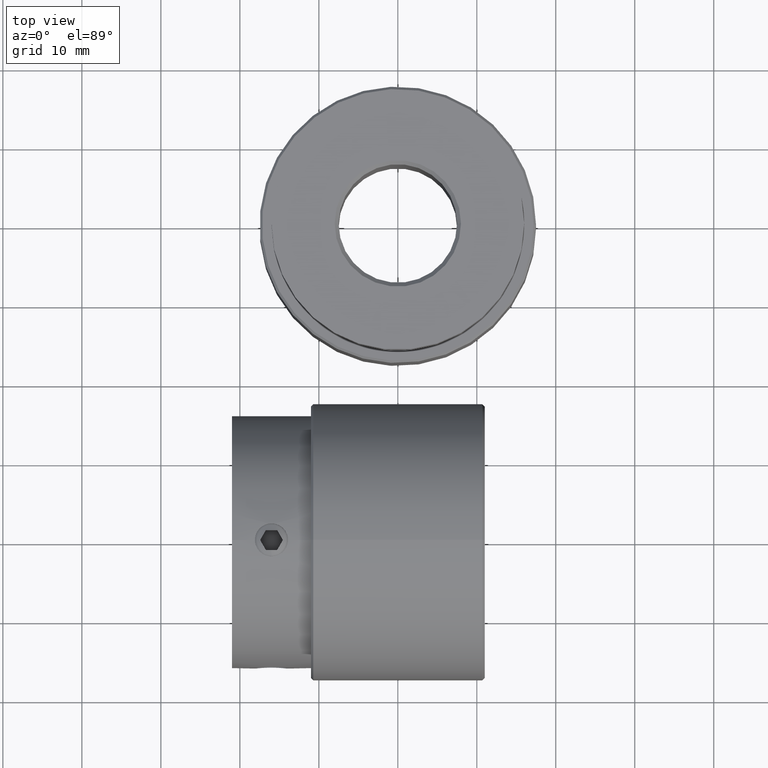
[diagram: clean part render]
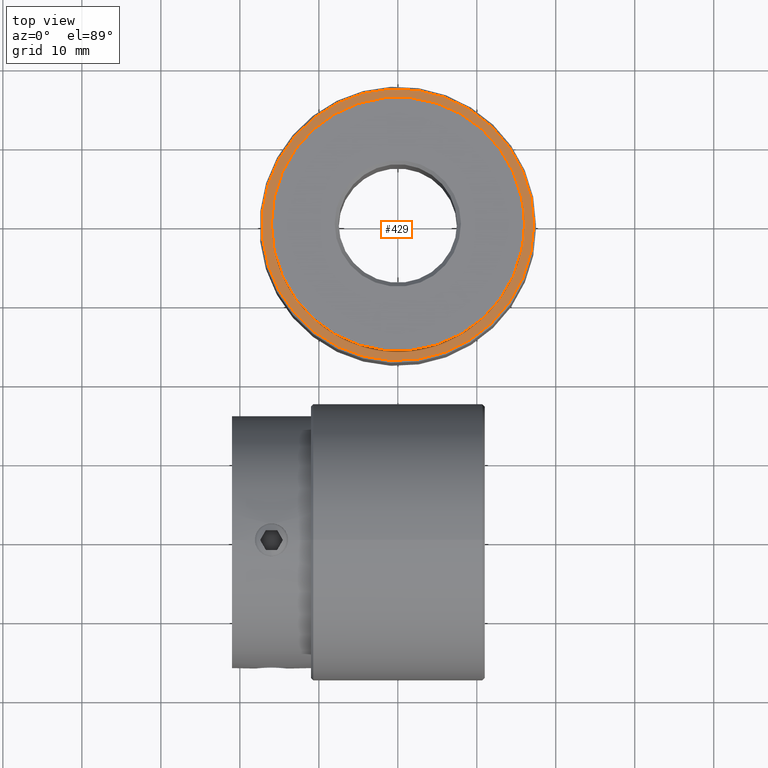
[diagram: same view with one face highlighted and labeled with its STEP entity id]
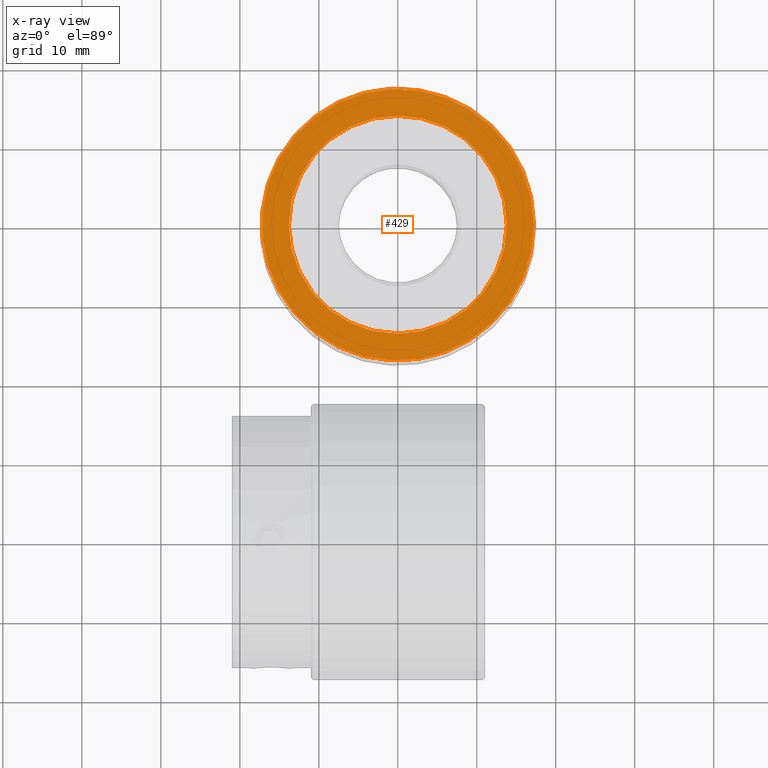
[diagram: x-ray of the same camera — body ghosted, the highlighted face saturated]
A machine part, top view. The second image highlights one B-rep face of the part: STEP entity #429.
The next image is the same camera in x-ray: the body ghosted, the highlighted face saturated — about 0% of this face is hidden behind the body in this view.
In plain terms, the highlighted planar face has unit normal (0, 0, 1).
Its self-contained STEP definition (entity closure, byte-faithful):
#429 = ADVANCED_FACE( '', ( #547, #548 ), #549, .T. );
#547 = FACE_BOUND( '', #747, .T. );
#548 = FACE_OUTER_BOUND( '', #748, .T. );
#549 = PLANE( '', #749 );
#747 = EDGE_LOOP( '', ( #983 ) );
#748 = EDGE_LOOP( '', ( #984 ) );
#749 = AXIS2_PLACEMENT_3D( '', #985, #986, #987 );
#983 = ORIENTED_EDGE( '', *, *, #1335, .T. );
#984 = ORIENTED_EDGE( '', *, *, #1334, .T. );
#985 = CARTESIAN_POINT( '', ( 0.000000000000000, 0.000000000000000, 22.0000000000000 ) );
#986 = DIRECTION( '', ( 0.000000000000000, 0.000000000000000, 1.00000000000000 ) );
#987 = DIRECTION( '', ( 1.00000000000000, 0.000000000000000, 0.000000000000000 ) );
#1334 = EDGE_CURVE( '', #1461, #1461, #1462, .T. );
#1335 = EDGE_CURVE( '', #1463, #1463, #1464, .F. );
#1461 = VERTEX_POINT( '', #1873 );
#1462 = CIRCLE( '', #1874, 17.2000000000000 );
#1463 = VERTEX_POINT( '', #1875 );
#1464 = CIRCLE( '', #1876, 13.8000000000000 );
#1873 = CARTESIAN_POINT( '', ( 17.2000000000000, 0.000000000000000, 22.0000000000000 ) );
#1874 = AXIS2_PLACEMENT_3D( '', #2418, #2419, #2420 );
#1875 = CARTESIAN_POINT( '', ( 13.8000000000000, 0.000000000000000, 22.0000000000000 ) );
#1876 = AXIS2_PLACEMENT_3D( '', #2421, #2422, #2423 );
#2418 = CARTESIAN_POINT( '', ( 0.000000000000000, 0.000000000000000, 22.0000000000000 ) );
#2419 = DIRECTION( '', ( 0.000000000000000, 0.000000000000000, 1.00000000000000 ) );
#2420 = DIRECTION( '', ( 1.00000000000000, 0.000000000000000, -0.000000000000000 ) );
#2421 = CARTESIAN_POINT( '', ( 0.000000000000000, 0.000000000000000, 22.0000000000000 ) );
#2422 = DIRECTION( '', ( 0.000000000000000, 0.000000000000000, 1.00000000000000 ) );
#2423 = DIRECTION( '', ( 1.00000000000000, 0.000000000000000, -0.000000000000000 ) );